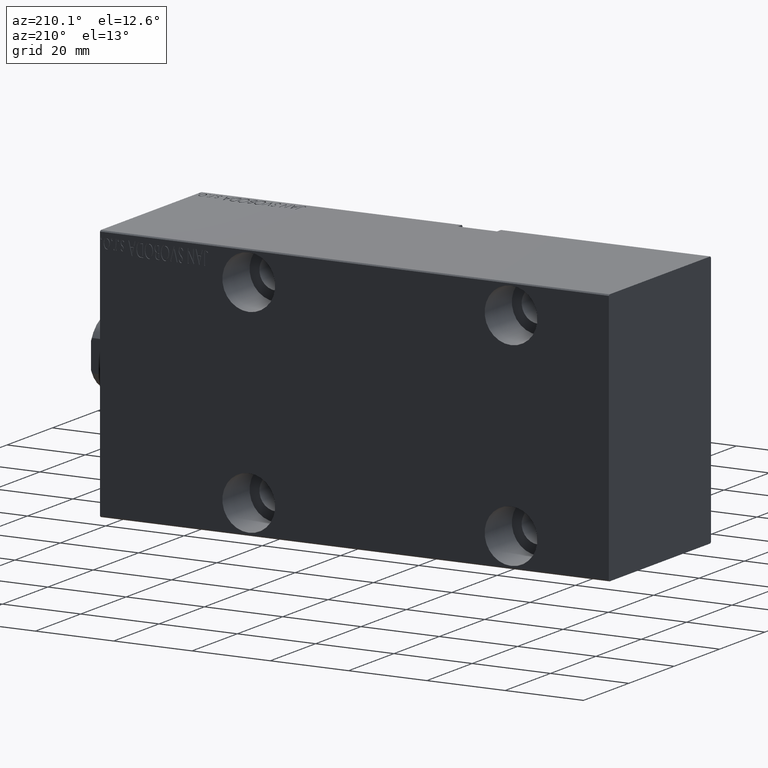
[diagram: clean part render]
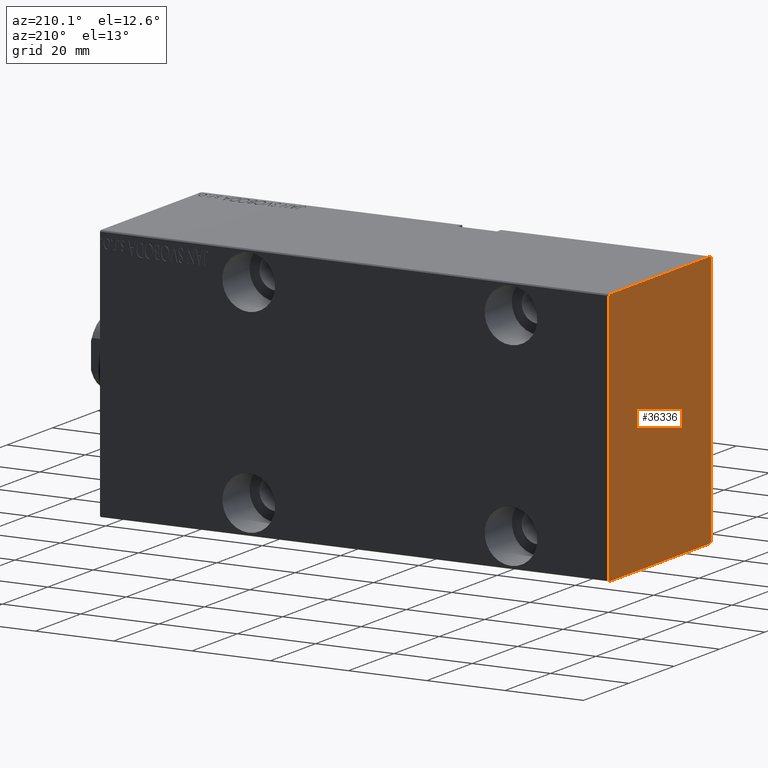
[diagram: same view with one face highlighted and labeled with its STEP entity id]
A machine part, auxiliary view. The second image highlights one B-rep face of the part: STEP entity #36336.
In plain terms, the highlighted planar face has unit normal (-1, 0, 0).
Its self-contained STEP definition (entity closure, byte-faithful):
#269 = LINE ( 'NONE', #33249, #33825 ) ;
#348 = VERTEX_POINT ( 'NONE', #22751 ) ;
#1887 = CARTESIAN_POINT ( 'NONE',  ( 130.0000000000000000, 22.19999999999998153, -32.50000000000000000 ) ) ;
#3098 = CARTESIAN_POINT ( 'NONE',  ( 130.0000000000000000, 22.49999999999999645, 32.20000000000000284 ) ) ;
#3534 = VERTEX_POINT ( 'NONE', #36821 ) ;
#3641 = VERTEX_POINT ( 'NONE', #1887 ) ;
#6294 = CARTESIAN_POINT ( 'NONE',  ( 130.0000000000000000, 22.50000000000000355, -32.50000000000000000 ) ) ;
#7564 = LINE ( 'NONE', #41409, #32132 ) ;
#7652 = EDGE_CURVE ( 'NONE', #3641, #34125, #22352, .T. ) ;
#8258 = CARTESIAN_POINT ( 'NONE',  ( 130.0000000000000000, -22.49999999999999645, -32.19999999999999574 ) ) ;
#10056 = CARTESIAN_POINT ( 'NONE',  ( 130.0000000000000000, 22.49999999999999645, 32.50000000000000711 ) ) ;
#11184 = EDGE_CURVE ( 'NONE', #23710, #35515, #7564, .T. ) ;
#11651 = EDGE_CURVE ( 'NONE', #40204, #3534, #29607, .T. ) ;
#11962 = ORIENTED_EDGE ( 'NONE', *, *, #11184, .T. ) ;
#12059 = DIRECTION ( 'NONE',  ( 0.000000000000000000, 0.000000000000000000, -1.000000000000000000 ) ) ;
#12366 = CARTESIAN_POINT ( 'NONE',  ( 130.0000000000000000, -22.49999999999999645, -32.50000000000000000 ) ) ;
#12722 = CARTESIAN_POINT ( 'NONE',  ( 130.0000000000000000, -22.49999999999999645, 32.20000000000001705 ) ) ;
#12728 = FACE_OUTER_BOUND ( 'NONE', #31397, .T. ) ;
#13247 = EDGE_CURVE ( 'NONE', #3534, #23710, #26756, .T. ) ;
#13708 = DIRECTION ( 'NONE',  ( -0.000000000000000000, 0.7071067811865474617, -0.7071067811865474617 ) ) ;
#14305 = VERTEX_POINT ( 'NONE', #8258 ) ;
#15827 = LINE ( 'NONE', #12366, #21322 ) ;
#16250 = DIRECTION ( 'NONE',  ( 0.000000000000000000, 1.000000000000000000, 0.000000000000000000 ) ) ;
#16261 = AXIS2_PLACEMENT_3D ( 'NONE', #26608, #29005, #36164 ) ;
#16894 = DIRECTION ( 'NONE',  ( 0.000000000000000000, -1.067522139062650425E-16, 1.000000000000000000 ) ) ;
#17027 = VECTOR ( 'NONE', #16894, 1000.000000000000000 ) ;
#18326 = VECTOR ( 'NONE', #33688, 1000.000000000000000 ) ;
#18363 = CARTESIAN_POINT ( 'NONE',  ( 130.0000000000000000, -22.49999999999999645, 32.50000000000000000 ) ) ;
#18651 = ORIENTED_EDGE ( 'NONE', *, *, #23009, .T. ) ;
#19284 = ORIENTED_EDGE ( 'NONE', *, *, #13247, .T. ) ;
#19438 = ORIENTED_EDGE ( 'NONE', *, *, #39667, .T. ) ;
#21248 = ORIENTED_EDGE ( 'NONE', *, *, #11651, .T. ) ;
#21310 = CARTESIAN_POINT ( 'NONE',  ( 130.0000000000000000, 22.50000000000000355, -32.19999999999999574 ) ) ;
#21322 = VECTOR ( 'NONE', #16250, 1000.000000000000000 ) ;
#22352 = LINE ( 'NONE', #25817, #30043 ) ;
#22673 = CARTESIAN_POINT ( 'NONE',  ( 130.0000000000000000, 27.34999999999974207, 27.35000000000037446 ) ) ;
#22751 = CARTESIAN_POINT ( 'NONE',  ( 130.0000000000000000, -22.19999999999998863, -32.50000000000000000 ) ) ;
#23000 = DIRECTION ( 'NONE',  ( -0.000000000000000000, 0.7071067811865474617, 0.7071067811865474617 ) ) ;
#23009 = EDGE_CURVE ( 'NONE', #35515, #14305, #32020, .T. ) ;
#23710 = VERTEX_POINT ( 'NONE', #35373 ) ;
#25817 = CARTESIAN_POINT ( 'NONE',  ( 130.0000000000000000, 27.34999999999999432, -27.34999999999999432 ) ) ;
#26188 = VECTOR ( 'NONE', #12059, 1000.000000000000000 ) ;
#26608 = CARTESIAN_POINT ( 'NONE',  ( 130.0000000000000000, 0.000000000000000000, 0.000000000000000000 ) ) ;
#26756 = LINE ( 'NONE', #10056, #18326 ) ;
#27397 = EDGE_CURVE ( 'NONE', #348, #3641, #15827, .T. ) ;
#28346 = EDGE_CURVE ( 'NONE', #14305, #348, #269, .T. ) ;
#29005 = DIRECTION ( 'NONE',  ( 1.000000000000000000, 0.000000000000000000, 0.000000000000000000 ) ) ;
#29607 = LINE ( 'NONE', #22673, #33553 ) ;
#30043 = VECTOR ( 'NONE', #23000, 1000.000000000000114 ) ;
#30833 = DIRECTION ( 'NONE',  ( -0.000000000000000000, -0.7071067811865556774, 0.7071067811865393571 ) ) ;
#31397 = EDGE_LOOP ( 'NONE', ( #32124, #35726, #19438, #21248, #19284, #11962, #18651, #41847 ) ) ;
#31646 = DIRECTION ( 'NONE',  ( 0.000000000000000000, -0.7071067811865474617, -0.7071067811865474617 ) ) ;
#32020 = LINE ( 'NONE', #18363, #26188 ) ;
#32124 = ORIENTED_EDGE ( 'NONE', *, *, #27397, .T. ) ;
#32132 = VECTOR ( 'NONE', #31646, 1000.000000000000114 ) ;
#32266 = PLANE ( 'NONE',  #16261 ) ;
#32543 = LINE ( 'NONE', #6294, #17027 ) ;
#33249 = CARTESIAN_POINT ( 'NONE',  ( 130.0000000000000000, -27.34999999999999076, -27.34999999999999076 ) ) ;
#33553 = VECTOR ( 'NONE', #30833, 1000.000000000000000 ) ;
#33688 = DIRECTION ( 'NONE',  ( 0.000000000000000000, -1.000000000000000000, -1.541976423090495633E-16 ) ) ;
#33825 = VECTOR ( 'NONE', #13708, 1000.000000000000114 ) ;
#34125 = VERTEX_POINT ( 'NONE', #21310 ) ;
#35373 = CARTESIAN_POINT ( 'NONE',  ( 130.0000000000000000, -22.19999999999999929, 32.50000000000000000 ) ) ;
#35515 = VERTEX_POINT ( 'NONE', #12722 ) ;
#35726 = ORIENTED_EDGE ( 'NONE', *, *, #7652, .T. ) ;
#36164 = DIRECTION ( 'NONE',  ( 0.000000000000000000, 0.000000000000000000, -1.000000000000000000 ) ) ;
#36336 = ADVANCED_FACE ( 'NONE', ( #12728 ), #32266, .T. ) ;
#36821 = CARTESIAN_POINT ( 'NONE',  ( 130.0000000000000000, 22.19999999999998863, 32.50000000000000711 ) ) ;
#39667 = EDGE_CURVE ( 'NONE', #34125, #40204, #32543, .T. ) ;
#40204 = VERTEX_POINT ( 'NONE', #3098 ) ;
#41409 = CARTESIAN_POINT ( 'NONE',  ( 130.0000000000000000, -27.35000000000000497, 27.35000000000000497 ) ) ;
#41847 = ORIENTED_EDGE ( 'NONE', *, *, #28346, .T. ) ;